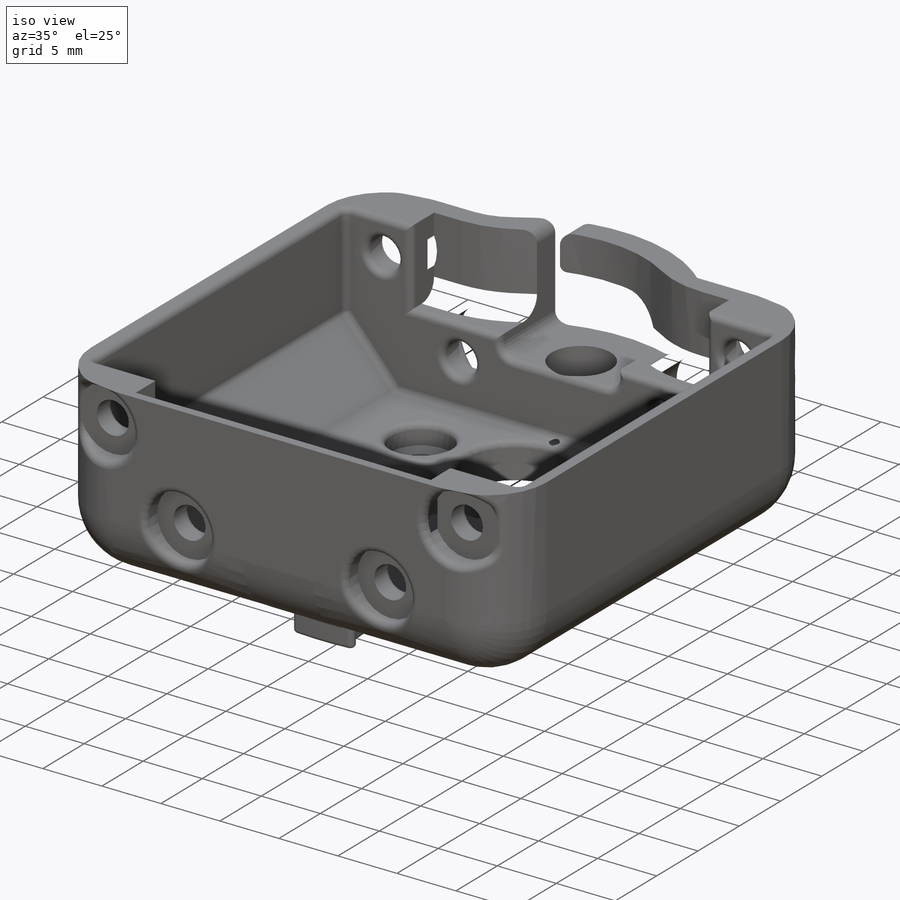
[diagram: iso view]
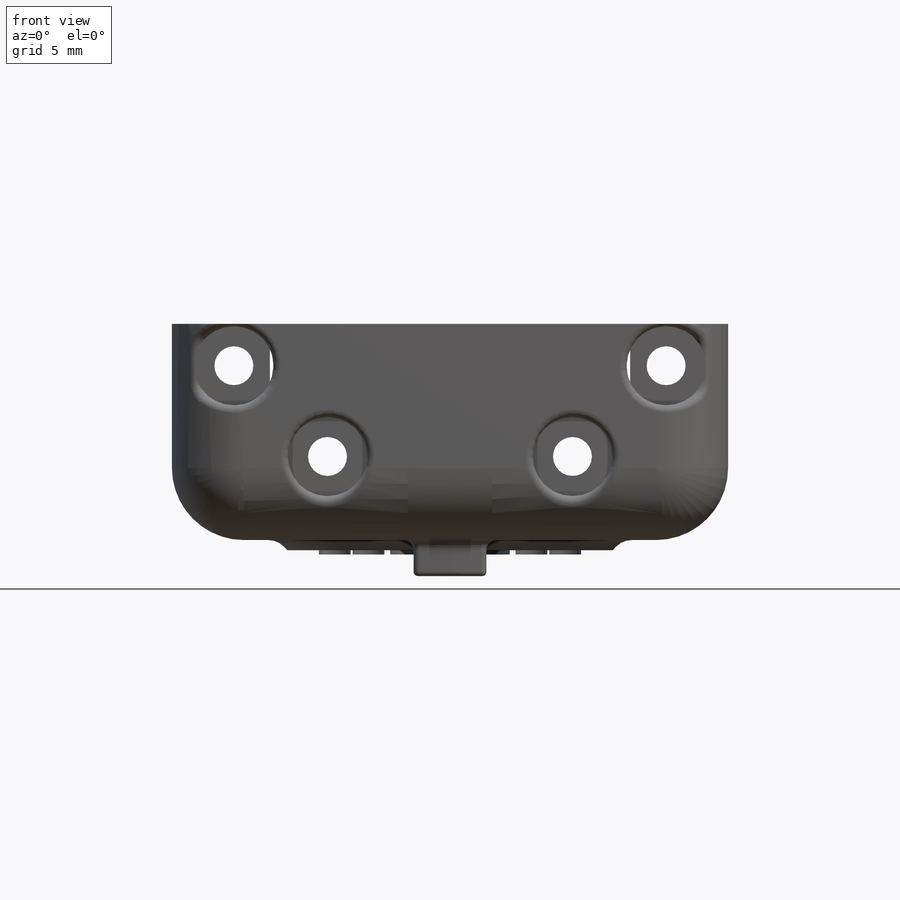
[diagram: front view]
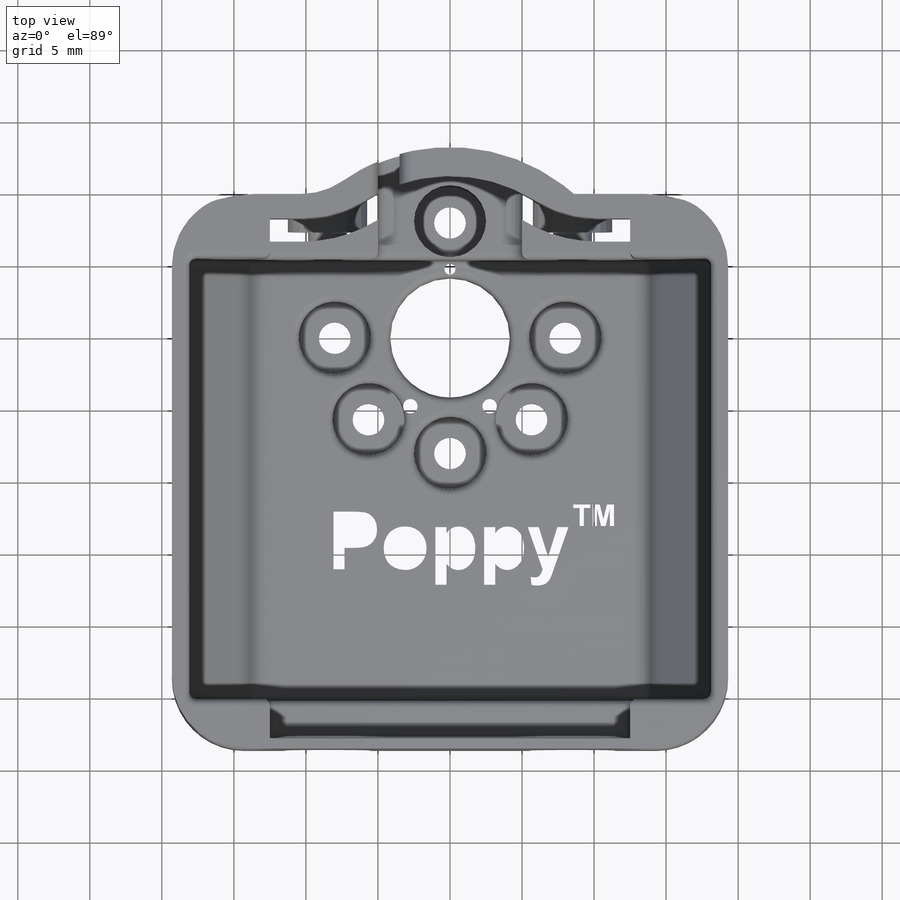
[diagram: top view]
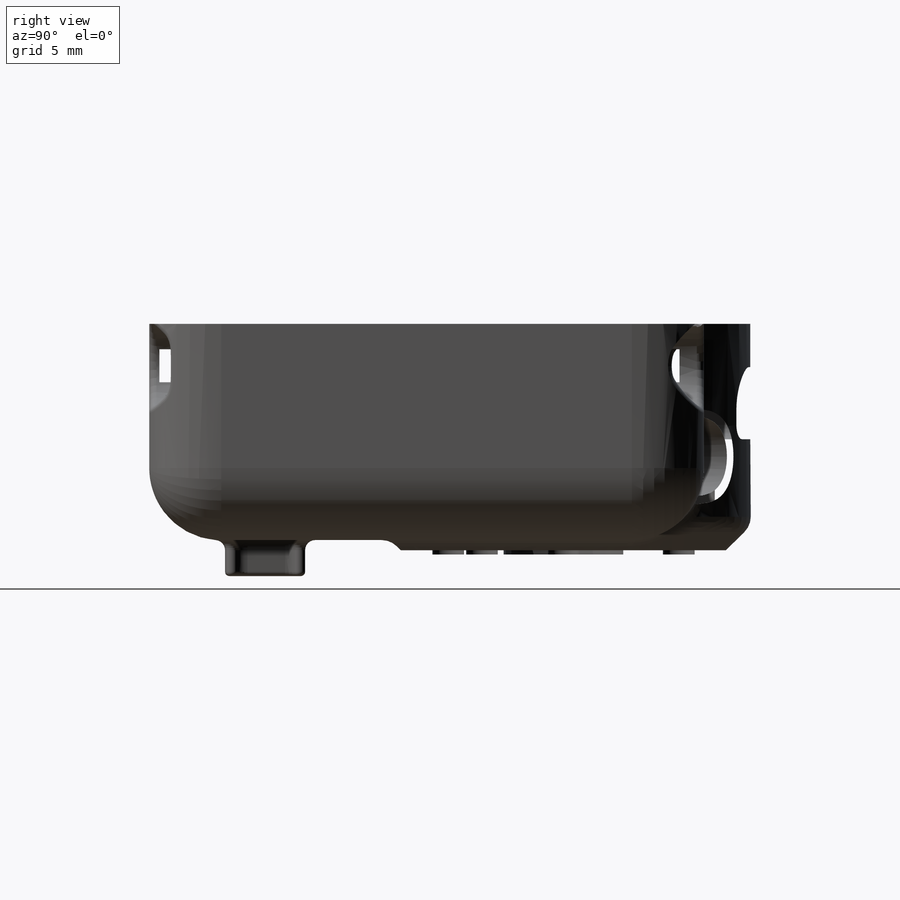
[diagram: right view]
SOLIDWORKS PART (.sldprt)
format: sldprt  version: not decoded by parser v0  size: 1,563,136 bytes
history: native  units: mm
features: sketch x21, fillet x15, cut_extrude x11, plane x7, extrude x2, hole x2, chamfer x2, material x1, mirror x1 (+12 scaffold rows collapsed; 3 parser-record rows omitted)
feature tree (77):
  scaffold x12  (default folders/planes/origin — collapsed)
  material  "white_polyamide"
  plane  "Plan de face"
  plane  "Plan de dessus"
  plane  "Plan de droite"
  sketch  "MoteurSagittal"  dims[c1.D1=10.0mm c1.D2=30.0mm c1.D3=50.6mm c2.D2=15.0mm c2.D4=2.75mm c2.D5=5.6mm c2.D6=2.0mm c2.D7=4.0mm c2.D8=1.0mm]
  plane  "Plan1"
  sketch  "MoteurFrontal"  dims[D9=2.7mm D1=17.8mm D2=12.2mm D3=2.8mm D4=2.8mm D5=6.3mm D6=17.0mm D7=17.0mm D8=8.5mm]
  sketch  "Rotation"  dims[c1.D1=22.0mm c1.D2=16.0mm c1.D3=2.2mm c1.D4=8.0mm c1.D6=~1.279824mm c1.D7=~11.660621mm c1.D8=1.0mm c2.D6=~4.987841mm c3.D6=60.0deg c3.D7=1.5mm c3.D5=8.0]
  plane  "Plan2"
  sketch  "MoteurHorizontal"  dims[D1=15.0mm]
  plane  "middle_motor"
  parser-record x3  (decoder bookkeeping rows leaked as tree rows — omitted from the tree; the rows remain in map.json)
  sketch  "Esquisse5"  dims[D1=2.0mm D2=2.0mm D3=1.0mm D4=1.5mm]
  extrude  "Boss.-Extru.1"  Depth=16mm
  sketch  "Esquisse6"  dims[D1=26.0mm]
  cut_extrude  "Enlèv. mat.-Extru.2"  Depth=1mm
  sketch  "Esquisse8"  dims[D1=0.3mm]
  cut_extrude  "Enlèv. mat.-Extru.4"  [1 undecoded]
  sketch  "Esquisse9"
  cut_extrude  "Enlèv. mat.-Extru.5"  [1 undecoded]
  sketch  "Esquisse10"  dims[D1=8.3mm]
  cut_extrude  "Enlèv. mat.-Extru.6"  [1 undecoded]
  plane  "Plan4"
  hole  "CBORE for M2.5 Pan Head Machine Screw1"  Diameter=2.7mm Depth=10mm
  sketch  "Esquisse12"
  sketch  "Esquisse13"  dims[hole-wizard template sketch: 30 standard entries collapsed; hole parameters kept: c8.Diamètre du chambrage=5.5mm c8.Profondeur du chambrage=2.5mm c8.D5=~14.816244mm c8.Angle de pointe=118.0deg]
  mirror  "Symétrie1"
  hole  "Chambrage pour vis à tête ronde bombée M22"  Diameter=2.2mm Depth=3mm
  sketch  "Esquisse15"
  sketch  "Esquisse14"  dims[hole-wizard template sketch: 42 standard entries collapsed; hole parameters kept: c12.Profondeur du perçage jusqu'au prochain=3.0mm c12.Diamètre du chambrage=5.0mm c12.Profondeur du chambrage=1.7mm]
  sketch  "Esquisse16"
  cut_extrude  "Enlèv. mat.-Extru.7"  [1 undecoded]
  sketch  "Esquisse17"
  cut_extrude  "Enlèv. mat.-Extru.8"  [1 undecoded]
  sketch  "Esquisse18"  dims[D1=10.0mm D2=5.0mm D3=8.0mm]
  cut_extrude  "Enlèv. mat.-Extru.9"  [1 undecoded]
  sketch  "Sketch5"  dims[D1=~21.30898mm]
  cut_extrude  "Cut-Extrude2"  [1 undecoded]
  sketch  "Sketch6"  dims[c1.D1=~3.032017mm c1.D2=~1.993271mm c2.D1=1.5mm]
  cut_extrude  "Cut-Extrude3"  [1 undecoded]
  sketch  "Sketch3"  dims[c1.D1=~31.697279mm c1.D2=38.0mm c1.D4=44.0mm c1.D5=~35.181256mm c2.D1=3.5mm c2.D3=~20.548278mm c3.D3=10.0deg c3.D4=1.0mm c3.D5=1.0mm c3.D6=~21.916283mm c4.D6=3.0deg]
  extrude  "Boss-Extrude3"  Depth=2.5mm
  fillet  "Fillet3"  Radius=1mm
  fillet  "Fillet4"  Radius=0.4mm
  fillet  "Fillet5"  Radius=0.3mm
  fillet  "Fillet6"  Radius=0.7mm
  fillet  "Congé1"  Radius=5mm
  fillet  "Congé2"  Radius=5mm
  fillet  "Congé3"  Radius=5mm
  chamfer  "Chanfrein1"  Distance=5mm Angle=41deg
  fillet  "Congé8"  Radius=1mm
  fillet  "Congé9"  Radius=8mm
  fillet  "Fillet7"  Radius=1mm
  fillet  "Congé4"  Radius=0.5mm
  chamfer  "Chamfer2"  Distance=2mm Angle=45deg
  fillet  "Congé6"  Radius=1.5mm
  fillet  "Congé7"  Radius=0.5mm
  sketch  "Sketch4"  dims[c1.D1=0.75mm c1.D2=1.0mm c2.D1=~4.138823mm c3.D1=60.0deg c3.D3=4.75mm]
  cut_extrude  "Cut-Extrude1"  Depth=0.75mm
  fillet  "Fillet9"  Radius=1mm
  fillet  "Fillet11"  Radius=1.5mm
  sketch  "Sketch7"  dims[D1=17.0mm D2=3.0mm]
  cut_extrude  "watermark_Poppy"  Depth=1mm
decode coverage: 40 of 54 modeling features carry decoded parameters
note: ~ marks probable driven/reference dimensions
note: 8 parameter values undecoded
summary: no parameter record found for 8 features
note: suppression state not decoded; provenance and decode notes live in map.json
